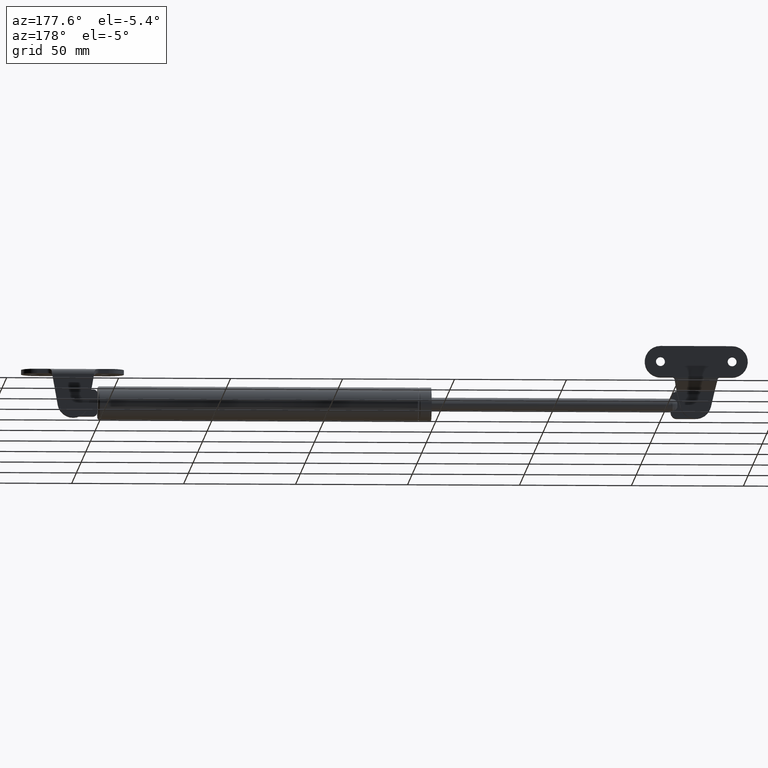
[diagram: clean part render]
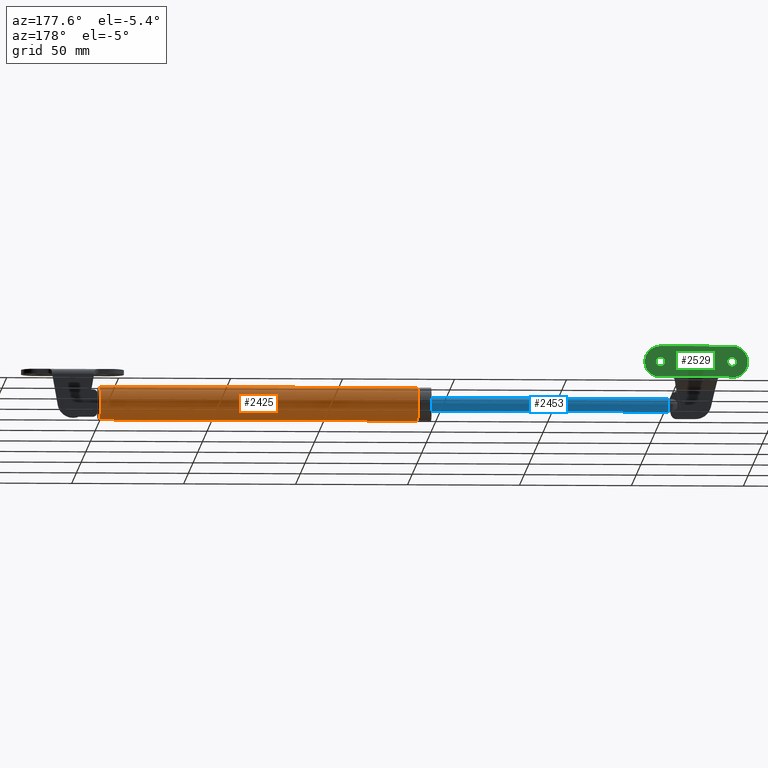
[diagram: same view with three faces highlighted in distinct colors, each labeled with its STEP entity id]
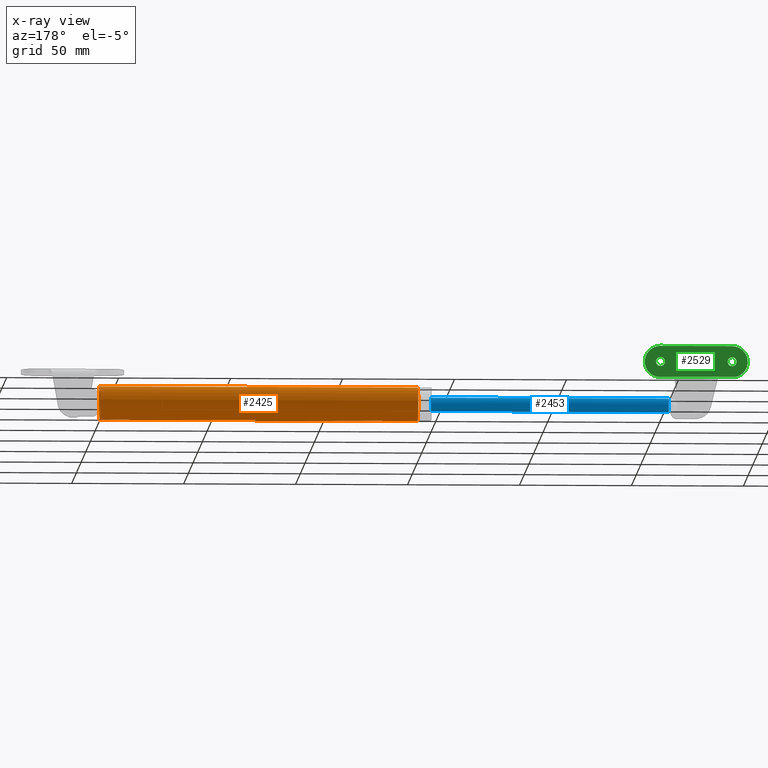
[diagram: x-ray of the same camera — body ghosted, the three highlighted faces saturated]
A machine part, auxiliary view with three faces highlighted in distinct colors.
The next image is the same camera in x-ray (body ghosted, the three faces saturated) — at least one of them is partly hidden behind the body in this view.
Their STEP definitions:

[orange] entity #2425 — the highlighted cylindrical surface (bore or boss wall) has radius 7.5 mm, axis along (-1, 0, -0).
#445=CYLINDRICAL_SURFACE('',#2602,7.49999999999999);
#525=FACE_BOUND('',#753,.T.);
#583=FACE_OUTER_BOUND('',#752,.T.);
#752=EDGE_LOOP('',(#1725));
#753=EDGE_LOOP('',(#1726));
#958=CIRCLE('',#2587,7.49999999999998);
#966=CIRCLE('',#2600,7.49999999999999);
#1126=VERTEX_POINT('',#3785);
#1134=VERTEX_POINT('',#3806);
#1364=EDGE_CURVE('',#1126,#1126,#958,.T.);
#1372=EDGE_CURVE('',#1134,#1134,#966,.T.);
#1725=ORIENTED_EDGE('',*,*,#1364,.F.);
#1726=ORIENTED_EDGE('',*,*,#1372,.F.);
#2425=ADVANCED_FACE('',(#583,#525),#445,.T.);
#2587=AXIS2_PLACEMENT_3D('',#3786,#2941,#2942);
#2600=AXIS2_PLACEMENT_3D('',#3807,#2967,#2968);
#2602=AXIS2_PLACEMENT_3D('',#3817,#2975,#2976);
#2941=DIRECTION('center_axis',(-1.,0.,-8.49276722564391E-34));
#2942=DIRECTION('ref_axis',(0.,0.,1.));
#2967=DIRECTION('center_axis',(1.,0.,8.49276722564391E-34));
#2968=DIRECTION('ref_axis',(0.,1.22464679914735E-16,-1.));
#2975=DIRECTION('center_axis',(-1.,0.,-8.49276722564391E-34));
#2976=DIRECTION('ref_axis',(0.,0.,1.));
#3785=CARTESIAN_POINT('',(6.,1.72215956130096E-15,-7.49999999999998));
#3786=CARTESIAN_POINT('Origin',(6.,0.,5.09566033538635E-33));
#3806=CARTESIAN_POINT('',(148.,-1.83697019872103E-15,7.49999999999999));
#3807=CARTESIAN_POINT('Origin',(148.,0.,1.2569295493953E-31));
#3817=CARTESIAN_POINT('Origin',(77.5,0.,6.58189459987403E-32));

[blue] entity #2453 — the highlighted cylindrical surface (bore or boss wall) has radius 3 mm, axis along (-1, 0, -0).
#458=CYLINDRICAL_SURFACE('',#2663,3.00000000000001);
#536=FACE_BOUND('',#792,.T.);
#611=FACE_OUTER_BOUND('',#791,.T.);
#791=EDGE_LOOP('',(#1856));
#792=EDGE_LOOP('',(#1857));
#997=CIRCLE('',#2659,3.00000000000001);
#999=CIRCLE('',#2664,3.);
#1188=VERTEX_POINT('',#4014);
#1189=VERTEX_POINT('',#4028);
#1446=EDGE_CURVE('',#1188,#1188,#997,.T.);
#1449=EDGE_CURVE('',#1189,#1189,#999,.T.);
#1856=ORIENTED_EDGE('',*,*,#1449,.T.);
#1857=ORIENTED_EDGE('',*,*,#1446,.T.);
#2453=ADVANCED_FACE('',(#611,#536),#458,.T.);
#2659=AXIS2_PLACEMENT_3D('',#4015,#3124,#3125);
#2663=AXIS2_PLACEMENT_3D('',#4027,#3132,#3133);
#2664=AXIS2_PLACEMENT_3D('',#4029,#3134,#3135);
#3124=DIRECTION('center_axis',(1.,0.,0.));
#3125=DIRECTION('ref_axis',(0.,0.,1.));
#3132=DIRECTION('center_axis',(-1.,0.,0.));
#3133=DIRECTION('ref_axis',(0.,0.,1.));
#3134=DIRECTION('center_axis',(-1.,0.,0.));
#3135=DIRECTION('ref_axis',(0.,0.,1.));
#4014=CARTESIAN_POINT('',(0.999999999999996,3.67394039744207E-16,-3.00000000000001));
#4015=CARTESIAN_POINT('Origin',(0.999999999999996,0.,0.));
#4027=CARTESIAN_POINT('Origin',(53.5,0.,0.));
#4028=CARTESIAN_POINT('',(107.,0.,3.));
#4029=CARTESIAN_POINT('Origin',(107.,0.,0.));

[green] entity #2529 — the highlighted planar face has unit normal (-0, -1, -0).
#192=LINE('',#4570,#334);
#198=LINE('',#4615,#340);
#334=VECTOR('',#3413,35.7080992435478);
#340=VECTOR('',#3463,32.);
#434=PLANE('',#2800);
#574=FACE_BOUND('',#906,.T.);
#575=FACE_BOUND('',#907,.T.);
#687=FACE_OUTER_BOUND('',#905,.T.);
#905=EDGE_LOOP('',(#2150,#2151,#2152,#2153));
#906=EDGE_LOOP('',(#2154));
#907=EDGE_LOOP('',(#2155));
#1040=CIRCLE('',#2786,2.);
#1043=CIRCLE('',#2791,2.);
#1044=CIRCLE('',#2793,7.);
#1047=CIRCLE('',#2797,7.);
#1279=VERTEX_POINT('',#4562);
#1280=VERTEX_POINT('',#4569);
#1284=VERTEX_POINT('',#4592);
#1287=VERTEX_POINT('',#4600);
#1288=VERTEX_POINT('',#4603);
#1291=VERTEX_POINT('',#4611);
#1568=EDGE_CURVE('',#1279,#1280,#192,.T.);
#1576=EDGE_CURVE('',#1284,#1284,#1040,.T.);
#1579=EDGE_CURVE('',#1287,#1287,#1043,.T.);
#1580=EDGE_CURVE('',#1280,#1288,#1044,.T.);
#1585=EDGE_CURVE('',#1291,#1279,#1047,.T.);
#1586=EDGE_CURVE('',#1288,#1291,#198,.T.);
#2150=ORIENTED_EDGE('',*,*,#1568,.F.);
#2151=ORIENTED_EDGE('',*,*,#1585,.F.);
#2152=ORIENTED_EDGE('',*,*,#1586,.F.);
#2153=ORIENTED_EDGE('',*,*,#1580,.F.);
#2154=ORIENTED_EDGE('',*,*,#1576,.T.);
#2155=ORIENTED_EDGE('',*,*,#1579,.T.);
#2529=ADVANCED_FACE('',(#687,#574,#575),#434,.F.);
#2786=AXIS2_PLACEMENT_3D('',#4593,#3435,#3436);
#2791=AXIS2_PLACEMENT_3D('',#4601,#3445,#3446);
#2793=AXIS2_PLACEMENT_3D('',#4604,#3449,#3450);
#2797=AXIS2_PLACEMENT_3D('',#4613,#3459,#3460);
#2800=AXIS2_PLACEMENT_3D('',#4618,#3467,#3468);
#3413=DIRECTION('',(-1.,0.,0.));
#3435=DIRECTION('center_axis',(0.,0.,1.));
#3436=DIRECTION('ref_axis',(1.,0.,0.));
#3445=DIRECTION('center_axis',(0.,0.,1.));
#3446=DIRECTION('ref_axis',(1.,0.,0.));
#3449=DIRECTION('center_axis',(0.,0.,1.));
#3450=DIRECTION('ref_axis',(0.,1.,0.));
#3459=DIRECTION('center_axis',(0.,0.,1.));
#3460=DIRECTION('ref_axis',(0.,-1.,0.));
#3463=DIRECTION('',(1.,-3.46944695195361E-17,0.));
#3467=DIRECTION('center_axis',(0.,0.,1.));
#3468=DIRECTION('ref_axis',(1.,0.,0.));
#4562=CARTESIAN_POINT('',(17.8540496217739,6.75,0.));
#4569=CARTESIAN_POINT('',(-17.8540496217739,6.75,0.));
#4570=CARTESIAN_POINT('',(0.,6.75,0.));
#4592=CARTESIAN_POINT('',(-18.,-2.44929359829471E-16,0.));
#4593=CARTESIAN_POINT('Origin',(-16.,0.,0.));
#4600=CARTESIAN_POINT('',(14.,5.63337527607782E-15,0.));
#4601=CARTESIAN_POINT('Origin',(16.,5.8783046359073E-15,0.));
#4603=CARTESIAN_POINT('',(-16.,-7.,0.));
#4604=CARTESIAN_POINT('Origin',(-16.,0.,0.));
#4611=CARTESIAN_POINT('',(16.,-7.,0.));
#4613=CARTESIAN_POINT('Origin',(16.,0.,0.));
#4615=CARTESIAN_POINT('',(-16.,-7.,0.));
#4618=CARTESIAN_POINT('Origin',(0.,1.11756870305741E-15,0.));